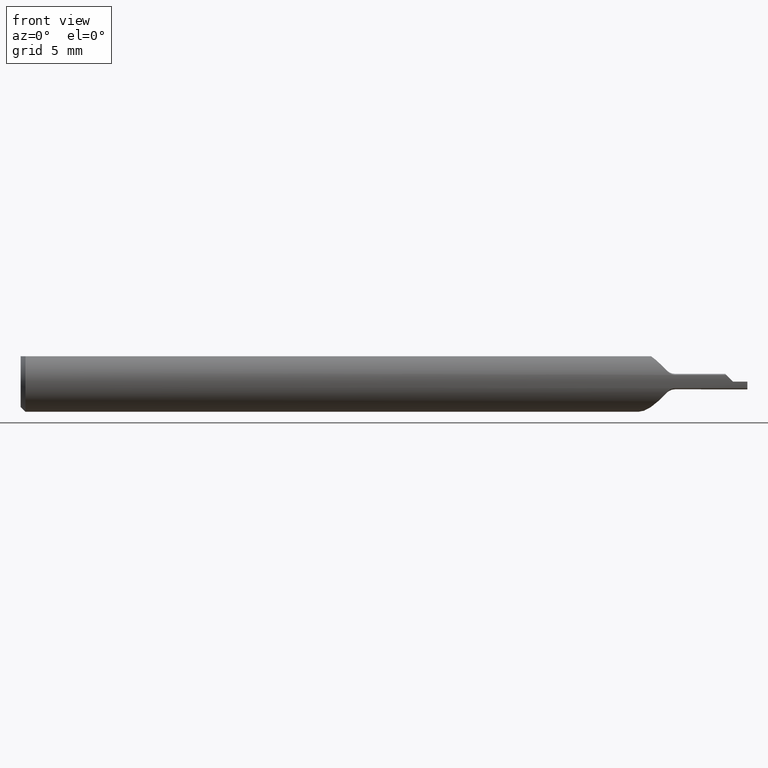
[diagram: clean part render]
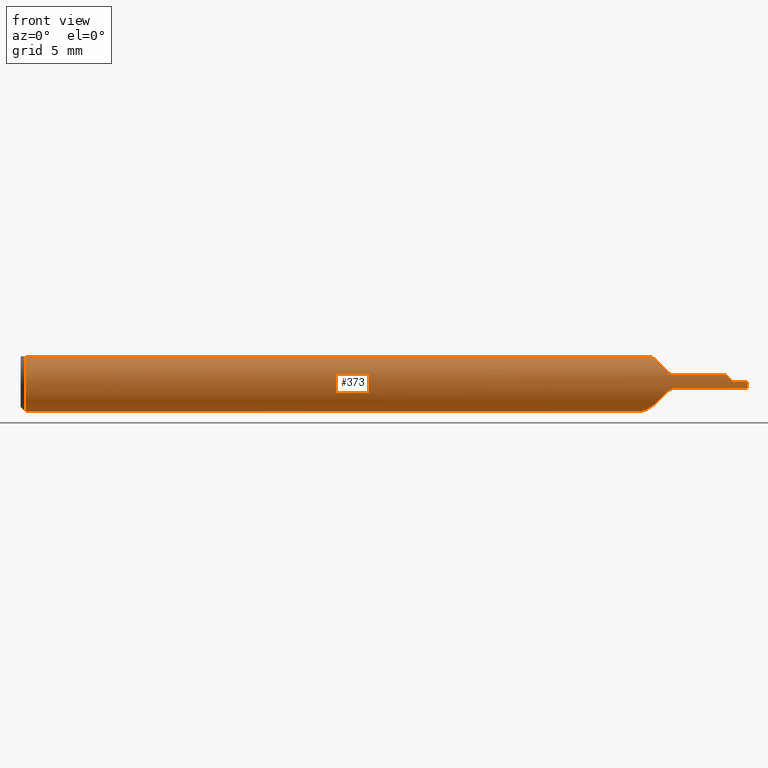
[diagram: same view with one face highlighted and labeled with its STEP entity id]
A machine part, front view. The second image highlights one B-rep face of the part: STEP entity #373.
In plain terms, the highlighted cylindrical surface (edge-blend (fillet) strip) has radius 1.5837 mm, axis along (-1, -0, -0).
Its self-contained STEP definition (entity closure, byte-faithful):
#3 = DIRECTION ( 'NONE',  ( 1.000000000000000000, 0.000000000000000000, 0.000000000000000000 ) ) ;
#4 = AXIS2_PLACEMENT_3D ( 'NONE', #648, #410, #726 ) ;
#14 = CIRCLE ( 'NONE', #264, 0.06235000000000000264 ) ;
#20 = CARTESIAN_POINT ( 'NONE',  ( 1.335514613592296840, -0.05908664951645565405, -0.02008857447892332254 ) ) ;
#33 = CARTESIAN_POINT ( 'NONE',  ( 1.255120519318515981, 0.03508918483241450781, -0.05178107122348592911 ) ) ;
#36 = CARTESIAN_POINT ( 'NONE',  ( 1.350999999999999979, -0.06086002865329517841, -0.01354914802930766264 ) ) ;
#40 = LINE ( 'NONE', #224, #112 ) ;
#52 = ORIENTED_EDGE ( 'NONE', *, *, #624, .F. ) ;
#59 = AXIS2_PLACEMENT_3D ( 'NONE', #302, #3, #247 ) ;
#60 = CARTESIAN_POINT ( 'NONE',  ( 0.009999999999999887451, 0.000000000000000000, 0.000000000000000000 ) ) ;
#61 = CARTESIAN_POINT ( 'NONE',  ( 1.322462965412670277, -0.05242313377551017367, 0.03436517021900221264 ) ) ;
#68 = VECTOR ( 'NONE', #768, 39.37007874015748143 ) ;
#69 = CARTESIAN_POINT ( 'NONE',  ( 1.416542465457123479, -0.06086002865329513678, 0.01354914802930775805 ) ) ;
#74 = CYLINDRICAL_SURFACE ( 'NONE', #753, 0.06235000000000000264 ) ;
#80 = CARTESIAN_POINT ( 'NONE',  ( 1.267454584078048674, 0.01260720869674350486, -0.06124853553781112181 ) ) ;
#81 = EDGE_CURVE ( 'NONE', #122, #707, #40, .T. ) ;
#94 = ORIENTED_EDGE ( 'NONE', *, *, #120, .F. ) ;
#96 = CARTESIAN_POINT ( 'NONE',  ( 1.259711240465376747, 0.02638752936846765554, -0.05671180232617656358 ) ) ;
#103 = VECTOR ( 'NONE', #195, 39.37007874015748143 ) ;
#105 = CARTESIAN_POINT ( 'NONE',  ( 1.301127731721387182, -0.03386738844375222074, 0.05234999999999997294 ) ) ;
#112 = VECTOR ( 'NONE', #286, 39.37007874015748143 ) ;
#118 = ORIENTED_EDGE ( 'NONE', *, *, #81, .F. ) ;
#120 = EDGE_CURVE ( 'NONE', #277, #293, #478, .T. ) ;
#122 = VERTEX_POINT ( 'NONE', #795 ) ;
#125 = CARTESIAN_POINT ( 'NONE',  ( 1.333322330470335881, -0.05810997040527625390, 0.02259986370529519506 ) ) ;
#132 = CIRCLE ( 'NONE', #59, 0.06235000000000000264 ) ;
#140 = CARTESIAN_POINT ( 'NONE',  ( 1.319252352888224955, -0.05006968415849936960, -0.03739237339314652186 ) ) ;
#144 = VERTEX_POINT ( 'NONE', #434 ) ;
#145 = CARTESIAN_POINT ( 'NONE',  ( 1.251549129668147575, 0.04215857753974009553, 0.04623189580670657856 ) ) ;
#147 = CARTESIAN_POINT ( 'NONE',  ( 1.350999999999999979, -0.06086002865329517841, 0.01354914802930766264 ) ) ;
#149 = ORIENTED_EDGE ( 'NONE', *, *, #709, .T. ) ;
#156 = EDGE_CURVE ( 'NONE', #707, #277, #674, .T. ) ;
#158 = DIRECTION ( 'NONE',  ( -1.000000000000000000, -0.000000000000000000, -0.000000000000000000 ) ) ;
#195 = DIRECTION ( 'NONE',  ( 1.000000000000000000, 5.738690339323287023E-17, 0.000000000000000000 ) ) ;
#206 = CARTESIAN_POINT ( 'NONE',  ( 1.333322330470335881, -0.05810997040527625390, -0.02259986370529519506 ) ) ;
#208 = ORIENTED_EDGE ( 'NONE', *, *, #320, .F. ) ;
#220 = LINE ( 'NONE', #283, #510 ) ;
#221 = EDGE_CURVE ( 'NONE', #144, #360, #132, .T. ) ;
#222 = VERTEX_POINT ( 'NONE', #787 ) ;
#224 = CARTESIAN_POINT ( 'NONE',  ( 0.000000000000000000, -0.03386738844375224849, 0.05234999999999997294 ) ) ;
#225 = CARTESIAN_POINT ( 'NONE',  ( 1.333322330470335881, -0.05810997040527625390, -0.02259986370529519506 ) ) ;
#238 = CARTESIAN_POINT ( 'NONE',  ( 1.335514962631105584, -0.05908680501565558019, 0.02008817465087433737 ) ) ;
#239 = CIRCLE ( 'NONE', #4, 0.06235000000000000264 ) ;
#247 = DIRECTION ( 'NONE',  ( 0.000000000000000000, 0.000000000000000000, -1.000000000000000000 ) ) ;
#253 = DIRECTION ( 'NONE',  ( 1.000000000000000000, 0.000000000000000000, 0.000000000000000000 ) ) ;
#262 = DIRECTION ( 'NONE',  ( -1.000000000000000000, -0.000000000000000000, -0.000000000000000000 ) ) ;
#264 = AXIS2_PLACEMENT_3D ( 'NONE', #60, #253, #673 ) ;
#272 = LINE ( 'NONE', #69, #103 ) ;
#274 = CARTESIAN_POINT ( 'NONE',  ( 1.243272724521851558, 0.05945386056944194225, 0.01957025641302970534 ) ) ;
#277 = VERTEX_POINT ( 'NONE', #706 ) ;
#278 = LINE ( 'NONE', #527, #68 ) ;
#280 = CARTESIAN_POINT ( 'NONE',  ( 1.278998297401819029, -0.006049595647838722397, -0.06275710159956590650 ) ) ;
#283 = CARTESIAN_POINT ( 'NONE',  ( 0.000000000000000000, 0.03386738844375224849, 0.05234999999999997294 ) ) ;
#286 = DIRECTION ( 'NONE',  ( 1.000000000000000000, 0.000000000000000000, 0.000000000000000000 ) ) ;
#293 = VERTEX_POINT ( 'NONE', #147 ) ;
#302 = CARTESIAN_POINT ( 'NONE',  ( 0.009999999999999887451, 0.000000000000000000, 0.000000000000000000 ) ) ;
#306 = CARTESIAN_POINT ( 'NONE',  ( 1.350999999999999979, -0.06086002865329517841, 0.01354914802930766264 ) ) ;
#307 = CARTESIAN_POINT ( 'NONE',  ( 1.456450851970692240, -0.06086002865329514372, 0.01354914802930778234 ) ) ;
#310 = CARTESIAN_POINT ( 'NONE',  ( 1.255778608326025614, 0.03386738844375224849, 0.05234999999999997294 ) ) ;
#314 = CARTESIAN_POINT ( 'NONE',  ( 1.350999999999999979, -0.06086002865329517841, -0.01354914802930766264 ) ) ;
#317 = CARTESIAN_POINT ( 'NONE',  ( 1.500000000000000222, -0.06235000000000000264, 0.000000000000000000 ) ) ;
#320 = EDGE_CURVE ( 'NONE', #293, #534, #272, .T. ) ;
#327 = ORIENTED_EDGE ( 'NONE', *, *, #514, .T. ) ;
#333 = CARTESIAN_POINT ( 'NONE',  ( 1.241873511088373849, 0.06250586468241341176, 0.003396618903314566063 ) ) ;
#335 = VERTEX_POINT ( 'NONE', #314 ) ;
#337 = ORIENTED_EDGE ( 'NONE', *, *, #651, .F. ) ;
#338 = CARTESIAN_POINT ( 'NONE',  ( 1.245021625917490660, 0.05568172665076242395, -0.02855154692902700173 ) ) ;
#340 = VECTOR ( 'NONE', #158, 39.37007874015748143 ) ;
#342 = CARTESIAN_POINT ( 'NONE',  ( 1.246566698396099460, 0.05241341464178986276, 0.03419461053979926807 ) ) ;
#347 = CARTESIAN_POINT ( 'NONE',  ( 1.338157920637270015, -0.05976086399941056559, -0.01786148374055650245 ) ) ;
#360 = VERTEX_POINT ( 'NONE', #697 ) ;
#373 = ADVANCED_FACE ( 'NONE', ( #511 ), #74, .T. ) ;
#375 = CARTESIAN_POINT ( 'NONE',  ( 1.344127258983879969, -0.06064446188155016987, 0.01458464786448843836 ) ) ;
#384 = CARTESIAN_POINT ( 'NONE',  ( 1.347510812968343075, -0.06086002865329517147, -0.01354914802930767305 ) ) ;
#391 = CARTESIAN_POINT ( 'NONE',  ( 1.253556232987831365, 0.03814937942353800043, 0.04957980225740116209 ) ) ;
#399 = B_SPLINE_CURVE_WITH_KNOTS ( 'NONE', 3,
 ( #225, #576, #469, #140, #451, #655, #702, #716, #650, #456, #280, #408, #80, #518, #96, #33, #591, #401, #529, #338, #465, #595, #522, #333, #771, #274, #699, #342, #712, #145, #391, #644 ),
 .UNSPECIFIED., .F., .F.,
 ( 4, 2, 2, 2, 2, 2, 2, 2, 2, 2, 2, 2, 2, 2, 2, 4 ),
 ( 3.141556408833838577E-07, 0.0004180711684555225372, 0.0008358281812701616898, 0.001253585194084800734, 0.001671342206899439995, 0.002506856232528705507, 0.002924613245343343684, 0.003342370258157982294, 0.003760127270972620905, 0.004177884283787259082, 0.004595641296601897692, 0.005013398309416536303, 0.005431155322231174913, 0.005848912335045812656, 0.006266669347860451267, 0.006684426360675089010 ),
 .UNSPECIFIED. ) ;
#401 = CARTESIAN_POINT ( 'NONE',  ( 1.249336385306930586, 0.04664343417362033090, -0.04169559551049442647 ) ) ;
#408 = CARTESIAN_POINT ( 'NONE',  ( 1.270212671126061732, 0.007964350568566386929, -0.06201591607959299618 ) ) ;
#410 = DIRECTION ( 'NONE',  ( -1.000000000000000000, -0.000000000000000000, -0.000000000000000000 ) ) ;
#425 = B_SPLINE_CURVE_WITH_KNOTS ( 'NONE', 3,
 ( #36, #384, #587, #347, #20, #206 ),
 .UNSPECIFIED., .F., .F.,
 ( 4, 2, 4 ),
 ( 1.968398792880873590E-07, 0.0002618823034121879633, 0.0005235677669450879059 ),
 .UNSPECIFIED. ) ;
#427 = CARTESIAN_POINT ( 'NONE',  ( 1.347510400263074892, -0.06086002865335832929, 0.01354914802902414117 ) ) ;
#431 = CARTESIAN_POINT ( 'NONE',  ( 1.460903670666237053, -0.06185135088873648657, 0.009096329333762876931 ) ) ;
#434 = CARTESIAN_POINT ( 'NONE',  ( 0.009999999999999887451, 0.000000000000000000, -0.06235000000000000264 ) ) ;
#440 = CARTESIAN_POINT ( 'NONE',  ( 1.470000000000000195, -0.06235000000000005121, 3.673940397442043783E-18 ) ) ;
#449 = CARTESIAN_POINT ( 'NONE',  ( 0.000000000000000000, 0.000000000000000000, 0.000000000000000000 ) ) ;
#451 = CARTESIAN_POINT ( 'NONE',  ( 1.315693297453277122, -0.04740452641559396441, -0.04072149185410162825 ) ) ;
#456 = CARTESIAN_POINT ( 'NONE',  ( 1.285197367530990231, -0.01496506956819954048, -0.06116378637257558620 ) ) ;
#457 = ORIENTED_EDGE ( 'NONE', *, *, #598, .F. ) ;
#465 = CARTESIAN_POINT ( 'NONE',  ( 1.243953314377158170, 0.05798227213337980163, -0.02356793370806698623 ) ) ;
#469 = CARTESIAN_POINT ( 'NONE',  ( 1.326305191432809227, -0.05463225618782638349, -0.03033940413937098041 ) ) ;
#478 = B_SPLINE_CURVE_WITH_KNOTS ( 'NONE', 3,
 ( #481, #238, #684, #375, #427, #306 ),
 .UNSPECIFIED., .F., .F.,
 ( 4, 2, 4 ),
 ( 3.125120641374326376E-07, 0.0002613270397793491942, 0.0005223415674945609518 ),
 .UNSPECIFIED. ) ;
#481 = CARTESIAN_POINT ( 'NONE',  ( 1.333322330470335881, -0.05810997040527625390, 0.02259986370529519506 ) ) ;
#490 = EDGE_CURVE ( 'NONE', #222, #575, #239, .T. ) ;
#502 = CARTESIAN_POINT ( 'NONE',  ( 1.456450851970692240, -0.06086002865329514372, 0.01354914802930778234 ) ) ;
#510 = VECTOR ( 'NONE', #657, 39.37007874015748143 ) ;
#511 = FACE_OUTER_BOUND ( 'NONE', #616, .T. ) ;
#514 = EDGE_CURVE ( 'NONE', #575, #663, #659, .T. ) ;
#516 = DIRECTION ( 'NONE',  ( 0.000000000000000000, 0.000000000000000000, 1.000000000000000000 ) ) ;
#518 = CARTESIAN_POINT ( 'NONE',  ( 1.262220060141003186, 0.02178710769785278945, -0.05861439033899371737 ) ) ;
#522 = CARTESIAN_POINT ( 'NONE',  ( 1.242050216156551867, 0.06211875806314123838, -0.007731755063596832539 ) ) ;
#527 = CARTESIAN_POINT ( 'NONE',  ( 1.416542465457123479, -0.06086002865329513678, -0.01354914802930775805 ) ) ;
#529 = CARTESIAN_POINT ( 'NONE',  ( 1.247690084237838448, 0.05005992948464350195, -0.03754529231266124506 ) ) ;
#534 = VERTEX_POINT ( 'NONE', #502 ) ;
#537 = ORIENTED_EDGE ( 'NONE', *, *, #490, .T. ) ;
#541 = ORIENTED_EDGE ( 'NONE', *, *, #603, .F. ) ;
#547 =( BOUNDED_CURVE ( )  B_SPLINE_CURVE ( 3, ( #440, #750, #431, #307 ),
 .UNSPECIFIED., .F., .T. ) 
 B_SPLINE_CURVE_WITH_KNOTS ( ( 4, 4 ),
 ( 4.712388980384689674, 4.931444599950887131 ),
 .UNSPECIFIED. ) 
 CURVE ( )  GEOMETRIC_REPRESENTATION_ITEM ( )  RATIONAL_B_SPLINE_CURVE ( ( 1.000000000000000000, 0.9960052155909604465, 0.9960052155909604465, 1.000000000000000000 ) ) 
 REPRESENTATION_ITEM ( '' )  );
#548 = EDGE_CURVE ( 'NONE', #663, #534, #547, .T. ) ;
#552 = CARTESIAN_POINT ( 'NONE',  ( 1.301127731721387182, -0.03386738844375222074, 0.05234999999999997294 ) ) ;
#575 = VERTEX_POINT ( 'NONE', #317 ) ;
#576 = CARTESIAN_POINT ( 'NONE',  ( 1.329832065598398616, -0.05655503037142079609, -0.02659800814225248347 ) ) ;
#582 = CARTESIAN_POINT ( 'NONE',  ( 1.333322330470335881, -0.05810997040527625390, -0.02259986370529519506 ) ) ;
#587 = CARTESIAN_POINT ( 'NONE',  ( 1.344127136360434793, -0.06064273473739694581, -0.01458945478556078652 ) ) ;
#591 = CARTESIAN_POINT ( 'NONE',  ( 1.253053083577869709, 0.03915679502391992278, -0.04879424187276955316 ) ) ;
#595 = CARTESIAN_POINT ( 'NONE',  ( 1.242469133884743115, 0.06119823572651277022, -0.01312125470293623412 ) ) ;
#598 = EDGE_CURVE ( 'NONE', #606, #754, #399, .T. ) ;
#603 = EDGE_CURVE ( 'NONE', #754, #360, #220, .T. ) ;
#606 = VERTEX_POINT ( 'NONE', #582 ) ;
#616 = EDGE_LOOP ( 'NONE', ( #337, #537, #327, #666, #208, #94, #731, #118, #149, #758, #541, #457, #52 ) ) ;
#619 = CARTESIAN_POINT ( 'NONE',  ( 1.311684205657506430, -0.04427552890348873671, 0.04437147078182524657 ) ) ;
#624 = EDGE_CURVE ( 'NONE', #335, #606, #425, .T. ) ;
#644 = CARTESIAN_POINT ( 'NONE',  ( 1.255778608326025614, 0.03386738844375224849, 0.05234999999999997294 ) ) ;
#648 = CARTESIAN_POINT ( 'NONE',  ( 1.500000000000000222, 0.000000000000000000, 0.000000000000000000 ) ) ;
#650 = CARTESIAN_POINT ( 'NONE',  ( 1.295092084230298868, -0.02722257574167549418, -0.05626556462563508249 ) ) ;
#651 = EDGE_CURVE ( 'NONE', #222, #335, #278, .T. ) ;
#655 = CARTESIAN_POINT ( 'NONE',  ( 1.308700991055678164, -0.04146774216951440439, -0.04675313233220947801 ) ) ;
#657 = DIRECTION ( 'NONE',  ( -1.000000000000000000, -0.000000000000000000, -0.000000000000000000 ) ) ;
#659 = LINE ( 'NONE', #714, #340 ) ;
#663 = VERTEX_POINT ( 'NONE', #682 ) ;
#666 = ORIENTED_EDGE ( 'NONE', *, *, #548, .T. ) ;
#673 = DIRECTION ( 'NONE',  ( 0.000000000000000000, 0.000000000000000000, -1.000000000000000000 ) ) ;
#674 = B_SPLINE_CURVE_WITH_KNOTS ( 'NONE', 3,
 ( #552, #675, #619, #61, #740, #125 ),
 .UNSPECIFIED., .F., .F.,
 ( 4, 2, 4 ),
 ( 4.636622646636788662E-07, 0.0006388245031314886959, 0.001277185343998313901 ),
 .UNSPECIFIED. ) ;
#675 = CARTESIAN_POINT ( 'NONE',  ( 1.306395572134182226, -0.03945390846926580264, 0.04873584825686974598 ) ) ;
#682 = CARTESIAN_POINT ( 'NONE',  ( 1.470000000000000195, -0.06235000000000005121, 3.673940397442043783E-18 ) ) ;
#684 = CARTESIAN_POINT ( 'NONE',  ( 1.338104256712942419, -0.05975121160065674508, 0.01789568167149448857 ) ) ;
#697 = CARTESIAN_POINT ( 'NONE',  ( 0.009999999999999887451, 0.03386738844375224849, 0.05234999999999997294 ) ) ;
#699 = CARTESIAN_POINT ( 'NONE',  ( 1.244176447389073292, 0.05749403757897956352, 0.02471584648049969177 ) ) ;
#702 = CARTESIAN_POINT ( 'NONE',  ( 1.305267504215336327, -0.03820397931512257983, -0.04945938863403304825 ) ) ;
#706 = CARTESIAN_POINT ( 'NONE',  ( 1.333322330470335881, -0.05810997040527625390, 0.02259986370529519506 ) ) ;
#707 = VERTEX_POINT ( 'NONE', #105 ) ;
#709 = EDGE_CURVE ( 'NONE', #122, #144, #14, .T. ) ;
#712 = CARTESIAN_POINT ( 'NONE',  ( 1.248071990013955634, 0.04925460598966223402, 0.03858390388309070052 ) ) ;
#714 = CARTESIAN_POINT ( 'NONE',  ( 2.249639673992775190E-32, -0.06234999999999999570, 1.836970198721025004E-16 ) ) ;
#716 = CARTESIAN_POINT ( 'NONE',  ( 1.298478139746371829, -0.03110052225048750771, -0.05420823438657233762 ) ) ;
#726 = DIRECTION ( 'NONE',  ( 0.000000000000000000, 0.000000000000000000, 1.000000000000000000 ) ) ;
#731 = ORIENTED_EDGE ( 'NONE', *, *, #156, .F. ) ;
#740 = CARTESIAN_POINT ( 'NONE',  ( 1.327968397130582456, -0.05572475163419916833, 0.02873286494834792482 ) ) ;
#750 = CARTESIAN_POINT ( 'NONE',  ( 1.465438167680649384, -0.06235000000000001652, 0.004561832319350930288 ) ) ;
#753 = AXIS2_PLACEMENT_3D ( 'NONE', #449, #262, #516 ) ;
#754 = VERTEX_POINT ( 'NONE', #310 ) ;
#758 = ORIENTED_EDGE ( 'NONE', *, *, #221, .T. ) ;
#768 = DIRECTION ( 'NONE',  ( -1.000000000000000000, -5.738690339323287023E-17, -0.000000000000000000 ) ) ;
#771 = CARTESIAN_POINT ( 'NONE',  ( 1.242120742347022411, 0.06196132917203930196, 0.008862852809144915189 ) ) ;
#787 = CARTESIAN_POINT ( 'NONE',  ( 1.500000000000000222, -0.06086002865329519229, -0.01354914802930783785 ) ) ;
#795 = CARTESIAN_POINT ( 'NONE',  ( 0.009999999999999887451, -0.03386738844375224849, 0.05234999999999997294 ) ) ;